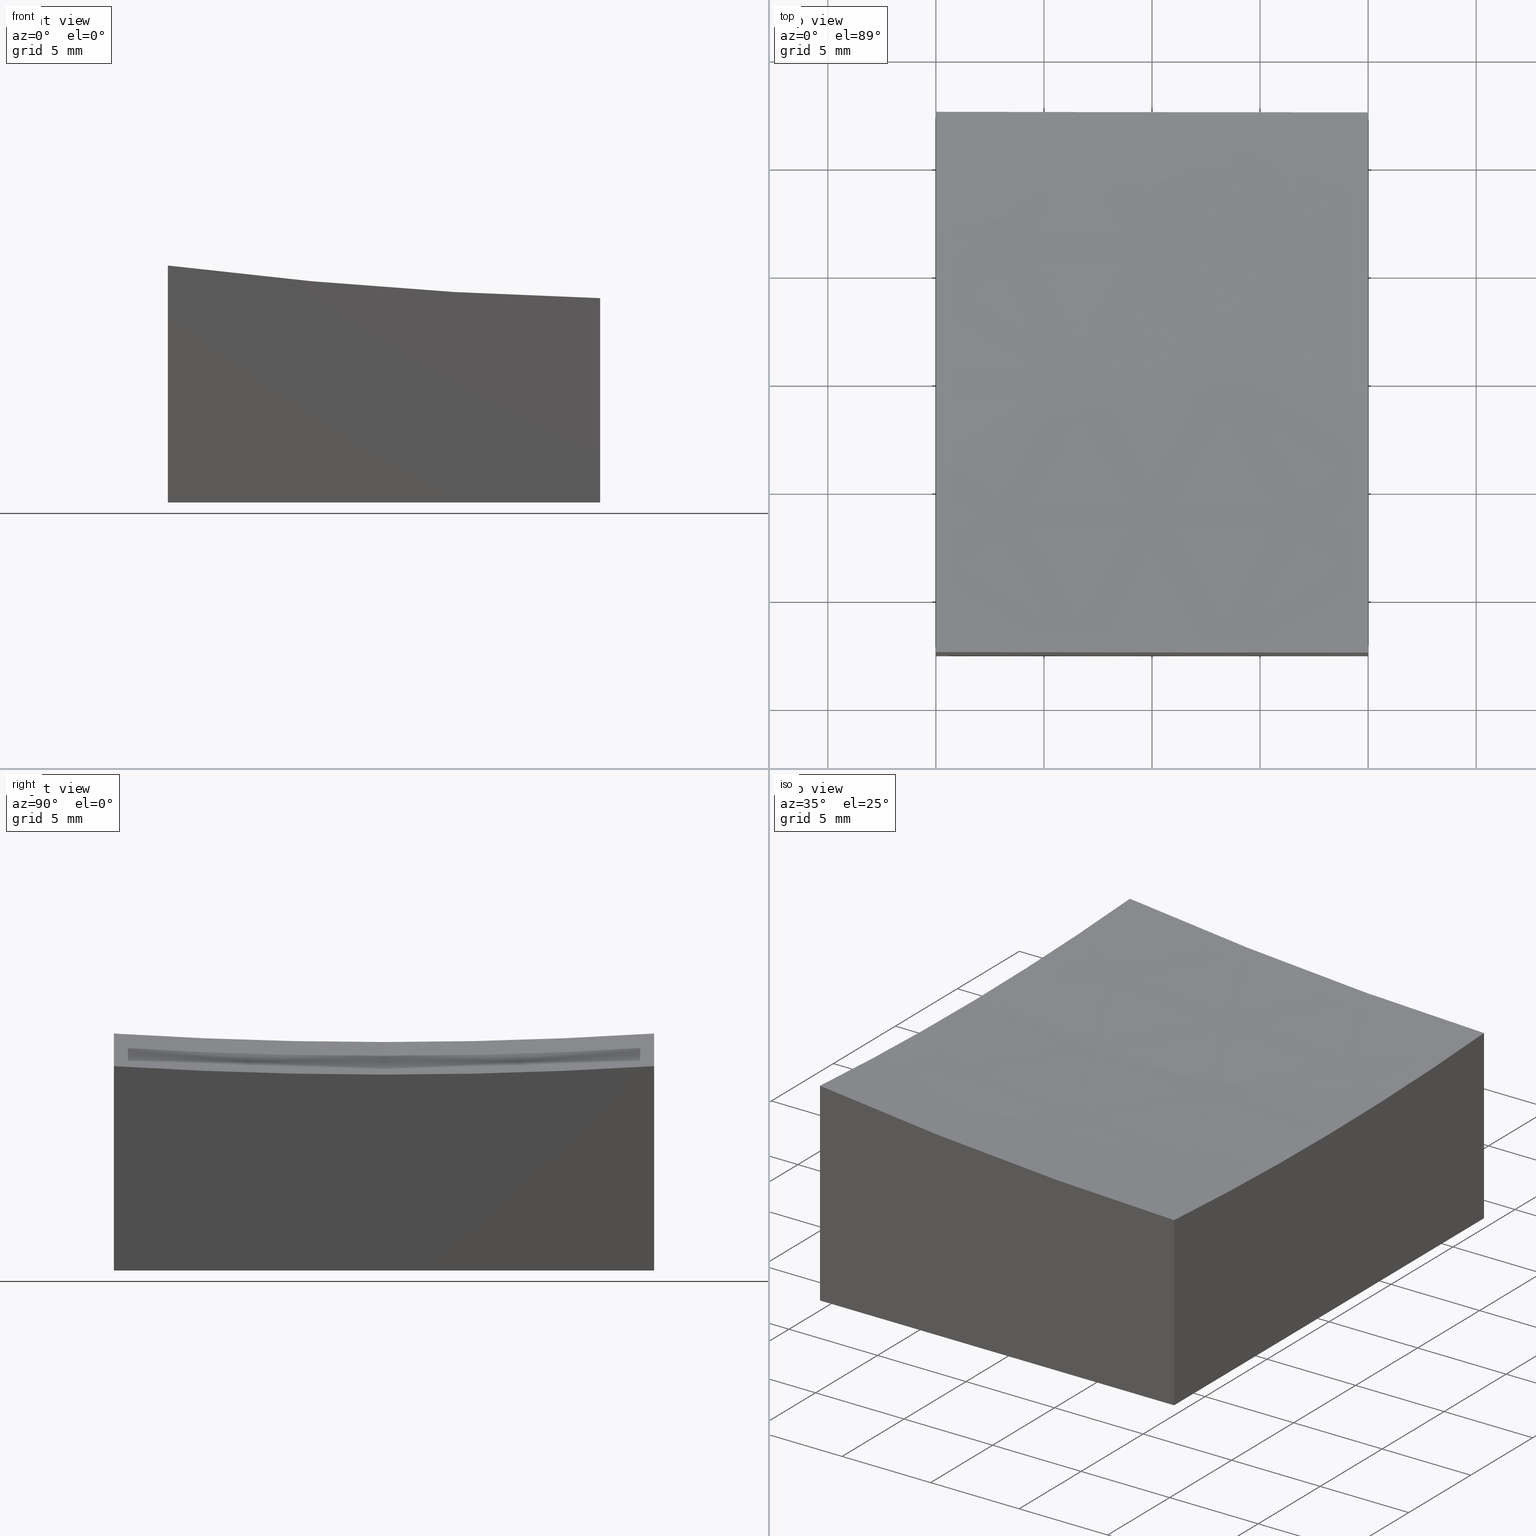
[diagram: canonical four-view strip — front | top / right | iso, engineering-drawing reading convention]
A machine part, canonical four-view strip (front | top / right | iso — engineering-drawing reading convention). The complete STEP part file that produces these views, byte-faithful:
ISO-10303-21;
HEADER;
FILE_DESCRIPTION (( 'STEP AP203' ),
    '1' );
FILE_NAME ('270637.step',
    '2024-12-24T02:21:27',
    ( '' ),
    ( '' ),
    'SwSTEP 2.0',
    'SolidWorks 2020',
    '' );
FILE_SCHEMA (( 'CONFIG_CONTROL_DESIGN' ));
ENDSEC;

DATA;
#1 = ORIENTED_EDGE ( 'NONE', *, *, #204, .F. ) ;
#2 = PERSON_AND_ORGANIZATION ( #22, #269 ) ;
#3 = APPROVAL ( #151, 'δָ��' ) ;
#4 = ORIENTED_EDGE ( 'NONE', *, *, #198, .T. ) ;
#5 = VECTOR ( 'NONE', #169, 1000.000000000000000 ) ;
#6 = DIRECTION ( 'NONE',  ( 1.000000000000000000, 0.000000000000000000, 0.000000000000000000 ) ) ;
#7 = DIRECTION ( 'NONE',  ( 1.000000000000000000, 1.734723475976807094E-16, 0.000000000000000000 ) ) ;
#8 = CARTESIAN_POINT ( 'NONE',  ( -9.999999999999998224, 12.49999999999999645, -10.00000000000000000 ) ) ;
#9 = ADVANCED_BREP_SHAPE_REPRESENTATION ( '270637', ( #121, #166 ), #197 ) ;
#10 = ORIENTED_EDGE ( 'NONE', *, *, #145, .F. ) ;
#11 = CARTESIAN_POINT ( 'NONE',  ( 10.00000000000000178, -12.50000000000000000, -0.5463605280738026426 ) ) ;
#12 = CARTESIAN_POINT ( 'NONE',  ( 0.000000000000000000, 0.000000000000000000, 0.000000000000000000 ) ) ;
#13 = CIRCLE ( 'NONE', #241, 198.4313483298443259 ) ;
#14 =( NAMED_UNIT ( * ) PLANE_ANGLE_UNIT ( ) SI_UNIT ( $, .RADIAN. ) );
#15 = CARTESIAN_POINT ( 'NONE',  ( 10.00000000000000178, -12.50000000000000000, 10.00000000000000000 ) ) ;
#16 = LINE ( 'NONE', #60, #194 ) ;
#17 = CC_DESIGN_SECURITY_CLASSIFICATION ( #258, ( #184 ) ) ;
#18 = CC_DESIGN_PERSON_AND_ORGANIZATION_ASSIGNMENT ( #2, #134, ( #258 ) ) ;
#19 = PERSON_AND_ORGANIZATION_ROLE ( 'design_owner' ) ;
#20 = ORIENTED_EDGE ( 'NONE', *, *, #83, .T. ) ;
#21 = DATE_AND_TIME ( #67, #117 ) ;
#22 = PERSON ( 'δָ��', 'δָ��', 'δָ��', ('δָ��'), ('δָ��'), ('δָ��') ) ;
#23 = CIRCLE ( 'NONE', #217, 200.0000000000000000 ) ;
#24 = ADVANCED_FACE ( 'NONE', ( #161 ), #267, .F. ) ;
#25 = APPROVAL_DATE_TIME ( #26, #246 ) ;
#26 = DATE_AND_TIME ( #237, #174 ) ;
#27 = ORIENTED_EDGE ( 'NONE', *, *, #177, .T. ) ;
#28 = ORIENTED_EDGE ( 'NONE', *, *, #75, .T. ) ;
#29 = APPROVAL_PERSON_ORGANIZATION ( #86, #220, #275 ) ;
#30 = FACE_OUTER_BOUND ( 'NONE', #216, .T. ) ;
#31 = PLANE ( 'NONE',  #227 ) ;
#32 = DESIGN_CONTEXT ( 'detailed design', #50, 'design' ) ;
#33 = DIRECTION ( 'NONE',  ( 0.000000000000000000, 0.000000000000000000, 1.000000000000000000 ) ) ;
#34 = VECTOR ( 'NONE', #38, 1000.000000000000000 ) ;
#35 = ADVANCED_FACE ( 'NONE', ( #30 ), #115, .F. ) ;
#36 = FACE_OUTER_BOUND ( 'NONE', #214, .T. ) ;
#37 = CARTESIAN_POINT ( 'NONE',  ( 10.00000000000000178, -12.50000000000000000, -10.00000000000000000 ) ) ;
#38 = DIRECTION ( 'NONE',  ( -0.000000000000000000, -1.000000000000000000, -0.000000000000000000 ) ) ;
#39 = CIRCLE ( 'NONE', #249, 199.9374902313220730 ) ;
#40 = DIRECTION ( 'NONE',  ( 0.000000000000000000, 1.000000000000000000, 0.000000000000000000 ) ) ;
#41 = DIRECTION ( 'NONE',  ( -0.000000000000000000, -0.000000000000000000, -1.000000000000000000 ) ) ;
#42 = DIRECTION ( 'NONE',  ( -1.000000000000000000, -1.734723475976807094E-16, 0.000000000000000000 ) ) ;
#43 = CC_DESIGN_DATE_AND_TIME_ASSIGNMENT ( #131, #215, ( #258 ) ) ;
#44 = APPROVAL_PERSON_ORGANIZATION ( #218, #3, #255 ) ;
#45 = PERSON_AND_ORGANIZATION ( #22, #269 ) ;
#46 = VERTEX_POINT ( 'NONE', #8 ) ;
#47 = PERSON_AND_ORGANIZATION_ROLE ( 'creator' ) ;
#48 = ADVANCED_FACE ( 'NONE', ( #36 ), #93, .F. ) ;
#49 = SHAPE_DEFINITION_REPRESENTATION ( #150, #9 ) ;
#50 = APPLICATION_CONTEXT ( 'configuration controlled 3d designs of mechanical parts and assemblies' ) ;
#51 = CALENDAR_DATE ( 2024, 24, 12 ) ;
#52 = ORIENTED_EDGE ( 'NONE', *, *, #157, .T. ) ;
#53 = DIRECTION ( 'NONE',  ( 1.000000000000000000, 1.734723475976807094E-16, -0.000000000000000000 ) ) ;
#54 = CARTESIAN_POINT ( 'NONE',  ( -9.999999999999998224, -12.50000000000000355, -10.00000000000000000 ) ) ;
#55 = LINE ( 'NONE', #185, #91 ) ;
#56 = PRODUCT_DEFINITION ( 'δ֪', '', #184, #32 ) ;
#57 = DIRECTION ( 'NONE',  ( 0.000000000000000000, 0.000000000000000000, 1.000000000000000000 ) ) ;
#58 = DIRECTION ( 'NONE',  ( -1.000000000000000000, -1.738121566355747637E-16, 0.000000000000000000 ) ) ;
#59 = AXIS2_PLACEMENT_3D ( 'NONE', #73, #77, #159 ) ;
#60 = CARTESIAN_POINT ( 'NONE',  ( 10.00000000000000178, 12.50000000000000000, -10.00000000000000000 ) ) ;
#61 = DIRECTION ( 'NONE',  ( 1.000000000000000000, 1.738121566355747637E-16, 0.000000000000000000 ) ) ;
#62 = PRODUCT ( '270637', '270637', '', ( #231 ) ) ;
#63 = AXIS2_PLACEMENT_3D ( 'NONE', #182, #263, #148 ) ;
#64 = APPLICATION_PROTOCOL_DEFINITION ( 'international standard', 'config_control_design', 1994, #50 ) ;
#65 = ORIENTED_EDGE ( 'NONE', *, *, #253, .F. ) ;
#66 = ORIENTED_EDGE ( 'NONE', *, *, #116, .F. ) ;
#67 = CALENDAR_DATE ( 2024, 24, 12 ) ;
#68 = VERTEX_POINT ( 'NONE', #76 ) ;
#69 = APPROVAL_ROLE ( '' ) ;
#70 = AXIS2_PLACEMENT_3D ( 'NONE', #79, #254, #61 ) ;
#71 = CC_DESIGN_PERSON_AND_ORGANIZATION_ASSIGNMENT ( #153, #128, ( #184 ) ) ;
#72 = ORIENTED_EDGE ( 'NONE', *, *, #191, .F. ) ;
#73 = CARTESIAN_POINT ( 'NONE',  ( -9.999999999999998224, -12.50000000000000355, 10.00000000000000000 ) ) ;
#74 = DIRECTION ( 'NONE',  ( 0.000000000000000000, -0.000000000000000000, 1.000000000000000000 ) ) ;
#75 = EDGE_CURVE ( 'NONE', #240, #90, #13, .T. ) ;
#76 = CARTESIAN_POINT ( 'NONE',  ( 10.00000000000000178, -6.123233995736765296E-16, -0.9374902313220578876 ) ) ;
#77 = DIRECTION ( 'NONE',  ( 1.000000000000000000, 0.000000000000000000, 0.000000000000000000 ) ) ;
#78 = CC_DESIGN_APPROVAL ( #246, ( #184 ) ) ;
#79 = CARTESIAN_POINT ( 'NONE',  ( 15.00000000000002487, 12.50000000000000178, 199.0000000000000000 ) ) ;
#80 = APPLICATION_PROTOCOL_DEFINITION ( 'international standard', 'config_control_design', 1994, #266 ) ;
#81 = LOCAL_TIME ( 10, 21, 27.00000000000000000, #173 ) ;
#82 = LINE ( 'NONE', #189, #147 ) ;
#83 = EDGE_CURVE ( 'NONE', #240, #68, #23, .T. ) ;
#84 = DATE_TIME_ROLE ( 'creation_date' ) ;
#85 = CC_DESIGN_APPROVAL ( #220, ( #258 ) ) ;
#86 = PERSON_AND_ORGANIZATION ( #22, #269 ) ;
#87 = VERTEX_POINT ( 'NONE', #98 ) ;
#88 = VERTEX_POINT ( 'NONE', #11 ) ;
#89 = COORDINATED_UNIVERSAL_TIME_OFFSET ( 8, 0, .AHEAD. ) ;
#90 = VERTEX_POINT ( 'NONE', #224 ) ;
#91 = VECTOR ( 'NONE', #53, 1000.000000000000000 ) ;
#92 = DIRECTION ( 'NONE',  ( 0.000000000000000000, 0.000000000000000000, -1.000000000000000000 ) ) ;
#93 = PLANE ( 'NONE',  #108 ) ;
#94 = ADVANCED_FACE ( 'NONE', ( #188 ), #31, .F. ) ;
#95 = ORIENTED_EDGE ( 'NONE', *, *, #208, .F. ) ;
#96 = CIRCLE ( 'NONE', #236, 199.6089927833914146 ) ;
#97 = VERTEX_POINT ( 'NONE', #203 ) ;
#98 = CARTESIAN_POINT ( 'NONE',  ( 10.00000000000000178, 12.50000000000000000, -10.00000000000000000 ) ) ;
#99 = CARTESIAN_POINT ( 'NONE',  ( 15.00000000000002842, -12.49999999999999822, 199.0000000000000000 ) ) ;
#100 = LOCAL_TIME ( 10, 21, 27.00000000000000000, #259 ) ;
#101 = DIRECTION ( 'NONE',  ( 0.000000000000000000, 0.000000000000000000, 1.000000000000000000 ) ) ;
#102 = EDGE_CURVE ( 'NONE', #106, #245, #55, .T. ) ;
#103 = CARTESIAN_POINT ( 'NONE',  ( -9.999999999999998224, -12.50000000000000355, 10.00000000000000000 ) ) ;
#104 = CLOSED_SHELL ( 'NONE', ( #24, #35, #256, #48, #133, #94, #271 ) ) ;
#105 = LINE ( 'NONE', #103, #137 ) ;
#106 = VERTEX_POINT ( 'NONE', #54 ) ;
#107 = PERSON_AND_ORGANIZATION_ROLE ( 'creator' ) ;
#108 = AXIS2_PLACEMENT_3D ( 'NONE', #265, #118, #33 ) ;
#109 = ORIENTED_EDGE ( 'NONE', *, *, #225, .T. ) ;
#110 = CALENDAR_DATE ( 2024, 24, 12 ) ;
#111 = ORIENTED_EDGE ( 'NONE', *, *, #225, .F. ) ;
#112 = CARTESIAN_POINT ( 'NONE',  ( 10.00000000000000178, 12.50000000000000000, 10.00000000000000000 ) ) ;
#113 = DIRECTION ( 'NONE',  ( 1.000000000000000000, 0.000000000000000000, -1.387778780781445676E-16 ) ) ;
#114 = DIRECTION ( 'NONE',  ( 0.000000000000000000, 0.000000000000000000, -1.000000000000000000 ) ) ;
#115 = PLANE ( 'NONE',  #59 ) ;
#116 = EDGE_CURVE ( 'NONE', #68, #88, #39, .T. ) ;
#117 = LOCAL_TIME ( 10, 21, 27.00000000000000000, #277 ) ;
#118 = DIRECTION ( 'NONE',  ( -1.000000000000000000, 0.000000000000000000, 0.000000000000000000 ) ) ;
#119 = CC_DESIGN_PERSON_AND_ORGANIZATION_ASSIGNMENT ( #45, #107, ( #184 ) ) ;
#120 = PLANE ( 'NONE',  #125 ) ;
#121 = MANIFOLD_SOLID_BREP ( '�г�-��ת8', #104 ) ;
#122 = CC_DESIGN_PERSON_AND_ORGANIZATION_ASSIGNMENT ( #235, #19, ( #62 ) ) ;
#123 = DIRECTION ( 'NONE',  ( 0.000000000000000000, -1.000000000000000000, -0.000000000000000000 ) ) ;
#124 = DIRECTION ( 'NONE',  ( -1.734723475976807094E-16, 1.000000000000000000, 0.000000000000000000 ) ) ;
#125 = AXIS2_PLACEMENT_3D ( 'NONE', #15, #172, #149 ) ;
#126 = DATE_AND_TIME ( #51, #81 ) ;
#127 = VERTEX_POINT ( 'NONE', #183 ) ;
#128 = PERSON_AND_ORGANIZATION_ROLE ( 'design_supplier' ) ;
#129 = ORIENTED_EDGE ( 'NONE', *, *, #162, .F. ) ;
#130 = APPROVAL_DATE_TIME ( #242, #3 ) ;
#131 = DATE_AND_TIME ( #179, #152 ) ;
#132 = EDGE_LOOP ( 'NONE', ( #65, #27, #264, #52 ) ) ;
#133 = ADVANCED_FACE ( 'NONE', ( #243 ), #141, .F. ) ;
#134 = PERSON_AND_ORGANIZATION_ROLE ( 'classification_officer' ) ;
#135 = EDGE_LOOP ( 'NONE', ( #181, #20, #138, #199 ) ) ;
#136 = CARTESIAN_POINT ( 'NONE',  ( -9.999999999999998224, 0.000000000000000000, 199.0000000000000000 ) ) ;
#137 = VECTOR ( 'NONE', #272, 1000.000000000000000 ) ;
#138 = ORIENTED_EDGE ( 'NONE', *, *, #146, .F. ) ;
#139 = DIRECTION ( 'NONE',  ( 1.000000000000000000, 0.000000000000000000, 0.000000000000000000 ) ) ;
#140 = CARTESIAN_POINT ( 'NONE',  ( -9.999999999999998224, 0.000000000000000000, 199.0000000000000000 ) ) ;
#141 = PLANE ( 'NONE',  #205 ) ;
#142 = AXIS2_PLACEMENT_3D ( 'NONE', #252, #123, #165 ) ;
#143 = CARTESIAN_POINT ( 'NONE',  ( -9.999999999999998224, 12.49999999999999645, 10.00000000000000000 ) ) ;
#144 =( NAMED_UNIT ( * ) SI_UNIT ( $, .STERADIAN. ) SOLID_ANGLE_UNIT ( ) );
#145 = EDGE_CURVE ( 'NONE', #127, #240, #190, .T. ) ;
#146 = EDGE_CURVE ( 'NONE', #97, #68, #232, .T. ) ;
#147 = VECTOR ( 'NONE', #230, 1000.000000000000000 ) ;
#148 = DIRECTION ( 'NONE',  ( 0.000000000000000000, 0.000000000000000000, 1.000000000000000000 ) ) ;
#149 = DIRECTION ( 'NONE',  ( -1.000000000000000000, -1.734723475976807094E-16, 0.000000000000000000 ) ) ;
#150 = PRODUCT_DEFINITION_SHAPE ( 'NONE', 'NONE',  #56 ) ;
#151 = APPROVAL_STATUS ( 'not_yet_approved' ) ;
#152 = LOCAL_TIME ( 10, 21, 27.00000000000000000, #89 ) ;
#153 = PERSON_AND_ORGANIZATION ( #22, #269 ) ;
#154 = ORIENTED_EDGE ( 'NONE', *, *, #102, .T. ) ;
#155 = APPROVAL_DATE_TIME ( #21, #220 ) ;
#156 = ORIENTED_EDGE ( 'NONE', *, *, #116, .T. ) ;
#157 = EDGE_CURVE ( 'NONE', #87, #46, #16, .T. ) ;
#158 = EDGE_LOOP ( 'NONE', ( #72, #4, #109, #154 ) ) ;
#159 = DIRECTION ( 'NONE',  ( 0.000000000000000000, 0.000000000000000000, -1.000000000000000000 ) ) ;
#160 = APPROVAL_PERSON_ORGANIZATION ( #257, #246, #69 ) ;
#161 = FACE_OUTER_BOUND ( 'NONE', #135, .T. ) ;
#162 = EDGE_CURVE ( 'NONE', #46, #106, #229, .T. ) ;
#163 = CARTESIAN_POINT ( 'NONE',  ( 10.00000000000000178, 0.000000000000000000, 199.0000000000000000 ) ) ;
#164 = DIRECTION ( 'NONE',  ( 1.000000000000000000, 0.000000000000000000, -0.000000000000000000 ) ) ;
#165 = DIRECTION ( 'NONE',  ( 1.000000000000000000, 0.000000000000000000, -1.387778780781445676E-16 ) ) ;
#166 = AXIS2_PLACEMENT_3D ( 'NONE', #12, #101, #170 ) ;
#167 = CIRCLE ( 'NONE', #70, 199.6089927833914146 ) ;
#168 = LINE ( 'NONE', #192, #5 ) ;
#169 = DIRECTION ( 'NONE',  ( -0.000000000000000000, -0.000000000000000000, -1.000000000000000000 ) ) ;
#170 = DIRECTION ( 'NONE',  ( 1.000000000000000000, 0.000000000000000000, 0.000000000000000000 ) ) ;
#171 = AXIS2_PLACEMENT_3D ( 'NONE', #136, #6, #92 ) ;
#172 = DIRECTION ( 'NONE',  ( -1.734723475976807094E-16, 1.000000000000000000, 0.000000000000000000 ) ) ;
#173 = COORDINATED_UNIVERSAL_TIME_OFFSET ( 8, 0, .AHEAD. ) ;
#174 = LOCAL_TIME ( 10, 21, 27.00000000000000000, #176 ) ;
#175 = APPROVAL_STATUS ( 'not_yet_approved' ) ;
#176 = COORDINATED_UNIVERSAL_TIME_OFFSET ( 8, 0, .AHEAD. ) ;
#177 = EDGE_CURVE ( 'NONE', #90, #97, #167, .T. ) ;
#178 = ORIENTED_EDGE ( 'NONE', *, *, #191, .T. ) ;
#179 = CALENDAR_DATE ( 2024, 24, 12 ) ;
#180 = VECTOR ( 'NONE', #40, 1000.000000000000000 ) ;
#181 = ORIENTED_EDGE ( 'NONE', *, *, #75, .F. ) ;
#182 = CARTESIAN_POINT ( 'NONE',  ( 10.00000000000000178, 0.000000000000000000, 199.0000000000000000 ) ) ;
#183 = CARTESIAN_POINT ( 'NONE',  ( -10.00000000000000000, -12.50000000000000355, 0.9627560280642266655 ) ) ;
#184 = PRODUCT_DEFINITION_FORMATION_WITH_SPECIFIED_SOURCE ( '�κ�', '', #62, .NOT_KNOWN. ) ;
#185 = CARTESIAN_POINT ( 'NONE',  ( 10.00000000000000178, -12.50000000000000000, -10.00000000000000000 ) ) ;
#186 = DIRECTION ( 'NONE',  ( 1.224646799147353207E-16, -1.000000000000000000, -1.487096486582537186E-32 ) ) ;
#187 = CC_DESIGN_DATE_AND_TIME_ASSIGNMENT ( #126, #84, ( #56 ) ) ;
#188 = FACE_OUTER_BOUND ( 'NONE', #238, .T. ) ;
#189 = CARTESIAN_POINT ( 'NONE',  ( 10.00000000000000178, 12.50000000000000000, 10.00000000000000000 ) ) ;
#190 = CIRCLE ( 'NONE', #171, 198.4313483298443259 ) ;
#191 = EDGE_CURVE ( 'NONE', #88, #245, #168, .T. ) ;
#192 = CARTESIAN_POINT ( 'NONE',  ( 10.00000000000000178, -12.50000000000000000, 10.00000000000000000 ) ) ;
#193 = CARTESIAN_POINT ( 'NONE',  ( -9.999999999999998224, -12.50000000000000355, -10.00000000000000000 ) ) ;
#194 = VECTOR ( 'NONE', #42, 1000.000000000000000 ) ;
#195 =( LENGTH_UNIT ( ) NAMED_UNIT ( * ) SI_UNIT ( .MILLI., .METRE. ) );
#196 = ORIENTED_EDGE ( 'NONE', *, *, #145, .T. ) ;
#197 =( GEOMETRIC_REPRESENTATION_CONTEXT ( 3 ) GLOBAL_UNCERTAINTY_ASSIGNED_CONTEXT ( ( #207 ) ) GLOBAL_UNIT_ASSIGNED_CONTEXT ( ( #195, #14, #144 ) ) REPRESENTATION_CONTEXT ( 'NONE', 'WORKASPACE' ) );
#198 = EDGE_CURVE ( 'NONE', #88, #127, #96, .T. ) ;
#199 = ORIENTED_EDGE ( 'NONE', *, *, #177, .F. ) ;
#200 = APPROVAL_STATUS ( 'not_yet_approved' ) ;
#201 = ORIENTED_EDGE ( 'NONE', *, *, #83, .F. ) ;
#202 = CARTESIAN_POINT ( 'NONE',  ( 15.00000000000002665, 0.000000000000000000, 199.0000000000000000 ) ) ;
#203 = CARTESIAN_POINT ( 'NONE',  ( 10.00000000000000178, 12.50000000000000000, -0.5463605280738026426 ) ) ;
#204 = EDGE_CURVE ( 'NONE', #245, #87, #233, .T. ) ;
#205 = AXIS2_PLACEMENT_3D ( 'NONE', #112, #221, #7 ) ;
#206 = ORIENTED_EDGE ( 'NONE', *, *, #198, .F. ) ;
#207 = UNCERTAINTY_MEASURE_WITH_UNIT (LENGTH_MEASURE( 1.000000000000000082E-05 ), #195, 'distance_accuracy_value', 'NONE');
#208 = EDGE_CURVE ( 'NONE', #97, #87, #82, .T. ) ;
#209 = FACE_OUTER_BOUND ( 'NONE', #219, .T. ) ;
#210 = VECTOR ( 'NONE', #41, 1000.000000000000000 ) ;
#211 = CARTESIAN_POINT ( 'NONE',  ( -9.999999999999996447, -3.061616997868382648E-15, 0.5686516701556842968 ) ) ;
#212 = CARTESIAN_POINT ( 'NONE',  ( 10.00000000000000178, -12.50000000000000000, -10.00000000000000000 ) ) ;
#213 = AXIS2_PLACEMENT_3D ( 'NONE', #228, #247, #113 ) ;
#214 = EDGE_LOOP ( 'NONE', ( #95, #260, #156, #178, #276 ) ) ;
#215 = DATE_TIME_ROLE ( 'classification_date' ) ;
#216 = EDGE_LOOP ( 'NONE', ( #111, #196, #28, #223, #274 ) ) ;
#217 = AXIS2_PLACEMENT_3D ( 'NONE', #202, #186, #244 ) ;
#218 = PERSON_AND_ORGANIZATION ( #22, #269 ) ;
#219 = EDGE_LOOP ( 'NONE', ( #201, #10, #206, #66 ) ) ;
#220 = APPROVAL ( #175, 'δָ��' ) ;
#221 = DIRECTION ( 'NONE',  ( 1.734723475976807094E-16, -1.000000000000000000, 0.000000000000000000 ) ) ;
#222 = CC_DESIGN_APPROVAL ( #3, ( #56 ) ) ;
#223 = ORIENTED_EDGE ( 'NONE', *, *, #253, .T. ) ;
#224 = CARTESIAN_POINT ( 'NONE',  ( -9.999999999999996447, 12.49999999999999645, 0.9627560280642266655 ) ) ;
#225 = EDGE_CURVE ( 'NONE', #127, #106, #105, .T. ) ;
#226 = ORIENTED_EDGE ( 'NONE', *, *, #102, .F. ) ;
#227 = AXIS2_PLACEMENT_3D ( 'NONE', #268, #74, #164 ) ;
#228 = CARTESIAN_POINT ( 'NONE',  ( 15.00000000000002665, 0.000000000000000000, 199.0000000000000000 ) ) ;
#229 = LINE ( 'NONE', #193, #34 ) ;
#230 = DIRECTION ( 'NONE',  ( -0.000000000000000000, -0.000000000000000000, -1.000000000000000000 ) ) ;
#231 = MECHANICAL_CONTEXT ( 'NONE', #266, 'mechanical' ) ;
#232 = CIRCLE ( 'NONE', #63, 199.9374902313220730 ) ;
#233 = LINE ( 'NONE', #37, #180 ) ;
#234 = CC_DESIGN_PERSON_AND_ORGANIZATION_ASSIGNMENT ( #239, #47, ( #56 ) ) ;
#235 = PERSON_AND_ORGANIZATION ( #22, #269 ) ;
#236 = AXIS2_PLACEMENT_3D ( 'NONE', #99, #124, #58 ) ;
#237 = CALENDAR_DATE ( 2024, 24, 12 ) ;
#238 = EDGE_LOOP ( 'NONE', ( #129, #262, #1, #226 ) ) ;
#239 = PERSON_AND_ORGANIZATION ( #22, #269 ) ;
#240 = VERTEX_POINT ( 'NONE', #211 ) ;
#241 = AXIS2_PLACEMENT_3D ( 'NONE', #140, #139, #114 ) ;
#242 = DATE_AND_TIME ( #110, #100 ) ;
#243 = FACE_OUTER_BOUND ( 'NONE', #132, .T. ) ;
#244 = DIRECTION ( 'NONE',  ( 1.000000000000000000, 1.224646799147353207E-16, 0.000000000000000000 ) ) ;
#245 = VERTEX_POINT ( 'NONE', #212 ) ;
#246 = APPROVAL ( #200, 'δָ��' ) ;
#247 = DIRECTION ( 'NONE',  ( 0.000000000000000000, -1.000000000000000000, -0.000000000000000000 ) ) ;
#248 = DIRECTION ( 'NONE',  ( -1.000000000000000000, 0.000000000000000000, 0.000000000000000000 ) ) ;
#249 = AXIS2_PLACEMENT_3D ( 'NONE', #163, #248, #57 ) ;
#250 = FACE_OUTER_BOUND ( 'NONE', #158, .T. ) ;
#251 = PRODUCT_RELATED_PRODUCT_CATEGORY ( 'detail', '', ( #62 ) ) ;
#252 = CARTESIAN_POINT ( 'NONE',  ( 15.00000000000002665, 0.000000000000000000, 199.0000000000000000 ) ) ;
#253 = EDGE_CURVE ( 'NONE', #90, #46, #270, .T. ) ;
#254 = DIRECTION ( 'NONE',  ( 1.734723475976807094E-16, -1.000000000000000000, 0.000000000000000000 ) ) ;
#255 = APPROVAL_ROLE ( '' ) ;
#256 = ADVANCED_FACE ( 'NONE', ( #250 ), #120, .F. ) ;
#257 = PERSON_AND_ORGANIZATION ( #22, #269 ) ;
#258 = SECURITY_CLASSIFICATION ( '', '', #261 ) ;
#259 = COORDINATED_UNIVERSAL_TIME_OFFSET ( 8, 0, .AHEAD. ) ;
#260 = ORIENTED_EDGE ( 'NONE', *, *, #146, .T. ) ;
#261 = SECURITY_CLASSIFICATION_LEVEL ( 'unclassified' ) ;
#262 = ORIENTED_EDGE ( 'NONE', *, *, #157, .F. ) ;
#263 = DIRECTION ( 'NONE',  ( -1.000000000000000000, 0.000000000000000000, 0.000000000000000000 ) ) ;
#264 = ORIENTED_EDGE ( 'NONE', *, *, #208, .T. ) ;
#265 = CARTESIAN_POINT ( 'NONE',  ( 10.00000000000000178, -12.50000000000000000, 10.00000000000000000 ) ) ;
#266 = APPLICATION_CONTEXT ( 'configuration controlled 3d designs of mechanical parts and assemblies' ) ;
#267 = SPHERICAL_SURFACE ( 'NONE', #213, 200.0000000000000000 ) ;
#268 = CARTESIAN_POINT ( 'NONE',  ( 0.000000000000000000, 0.000000000000000000, -10.00000000000000000 ) ) ;
#269 = ORGANIZATION ( 'δָ��', 'δָ��', '' ) ;
#270 = LINE ( 'NONE', #143, #210 ) ;
#271 = ADVANCED_FACE ( 'NONE', ( #209 ), #273, .F. ) ;
#272 = DIRECTION ( 'NONE',  ( -0.000000000000000000, -0.000000000000000000, -1.000000000000000000 ) ) ;
#273 = SPHERICAL_SURFACE ( 'NONE', #142, 200.0000000000000000 ) ;
#274 = ORIENTED_EDGE ( 'NONE', *, *, #162, .T. ) ;
#275 = APPROVAL_ROLE ( '' ) ;
#276 = ORIENTED_EDGE ( 'NONE', *, *, #204, .T. ) ;
#277 = COORDINATED_UNIVERSAL_TIME_OFFSET ( 8, 0, .AHEAD. ) ;
ENDSEC;
END-ISO-10303-21;
